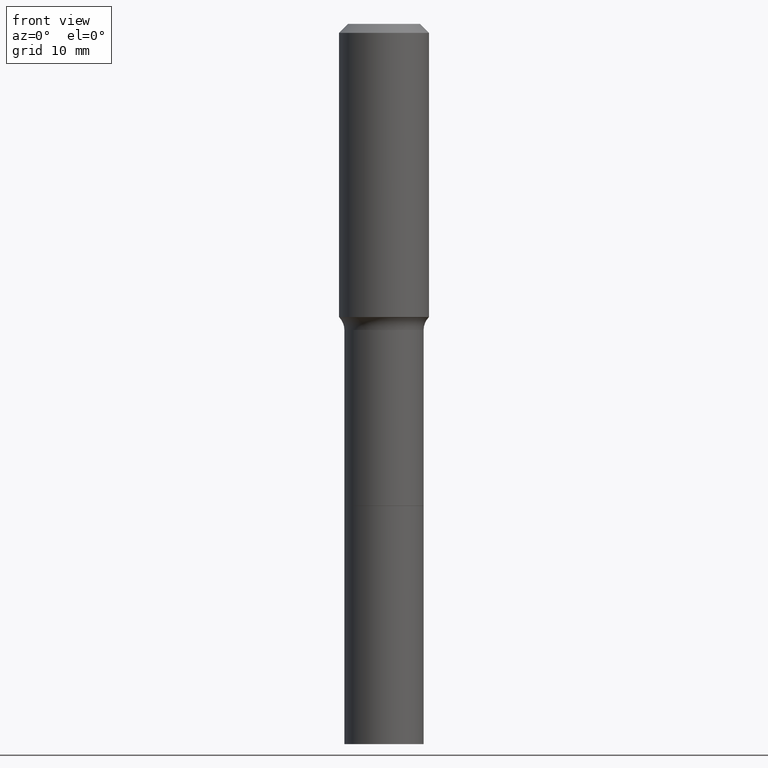
[diagram: clean part render]
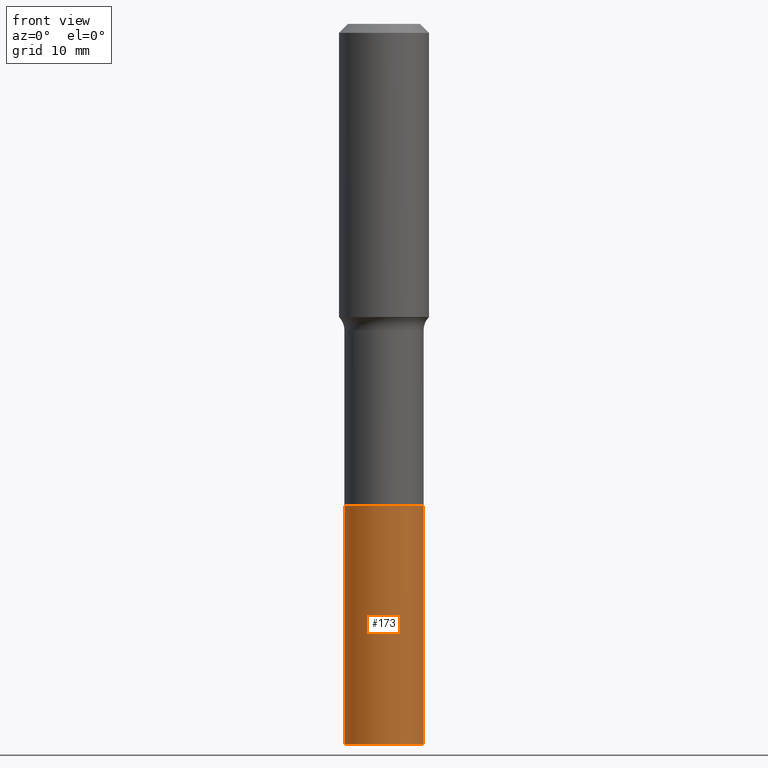
[diagram: same view with one face highlighted and labeled with its STEP entity id]
A machine part, front view. The second image highlights one B-rep face of the part: STEP entity #173.
In plain terms, the highlighted cylindrical surface (partial cylindrical patch) has radius 4.4006 mm, axis along (-0, 0, 1).
Its self-contained STEP definition (entity closure, byte-faithful):
#31 = DIRECTION ( 'NONE',  ( -2.445468806185136597E-29, 3.491481338843145583E-15, 1.000000000000000000 ) ) ;
#46 = EDGE_LOOP ( 'NONE', ( #390, #426, #222, #395 ) ) ;
#48 = CARTESIAN_POINT ( 'NONE',  ( -0.1732500000000001816, -7.944946816909296255E-15, -3.149600000000000399 ) ) ;
#51 = EDGE_CURVE ( 'NONE', #77, #307, #85, .T. ) ;
#55 = DIRECTION ( 'NONE',  ( -2.445468806185136597E-29, 3.491481338843145583E-15, 1.000000000000000000 ) ) ;
#62 = CARTESIAN_POINT ( 'NONE',  ( 0.1732500000000001816, -1.220656790872951925E-14, -3.149600000000000399 ) ) ;
#63 = AXIS2_PLACEMENT_3D ( 'NONE', #328, #414, #368 ) ;
#70 = VERTEX_POINT ( 'NONE', #237 ) ;
#77 = VERTEX_POINT ( 'NONE', #48 ) ;
#85 = LINE ( 'NONE', #238, #478 ) ;
#93 = EDGE_CURVE ( 'NONE', #77, #149, #281, .T. ) ;
#111 = CARTESIAN_POINT ( 'NONE',  ( -0.1732499999999999873, -7.944946816909297833E-15, -2.106600000000000250 ) ) ;
#144 = CIRCLE ( 'NONE', #501, 0.1732499999999999873 ) ;
#145 = DIRECTION ( 'NONE',  ( 1.000000000000000000, -6.982962677686265133E-15, 0.000000000000000000 ) ) ;
#149 = VERTEX_POINT ( 'NONE', #62 ) ;
#168 = CARTESIAN_POINT ( 'NONE',  ( 0.1732500000000000984, -8.564952872316117653E-15, -2.106600000000000250 ) ) ;
#173 = ADVANCED_FACE ( 'NONE', ( #246 ), #288, .T. ) ;
#213 = DIRECTION ( 'NONE',  ( -2.445468806185136877E-29, 3.491481338843145188E-15, 1.000000000000000000 ) ) ;
#216 = CARTESIAN_POINT ( 'NONE',  ( 5.151624587109609366E-29, -7.355154588406972292E-15, -2.106600000000000250 ) ) ;
#221 = CARTESIAN_POINT ( 'NONE',  ( 5.151624587109609366E-29, -7.355154588406972292E-15, -2.106600000000000250 ) ) ;
#222 = ORIENTED_EDGE ( 'NONE', *, *, #443, .T. ) ;
#234 = AXIS2_PLACEMENT_3D ( 'NONE', #216, #55, #381 ) ;
#237 = CARTESIAN_POINT ( 'NONE',  ( 0.1732499999999999873, -8.564952872316117653E-15, -2.106600000000000250 ) ) ;
#238 = CARTESIAN_POINT ( 'NONE',  ( -0.1732500000000000984, -6.124139298702597035E-15, -2.106600000000000250 ) ) ;
#246 = FACE_OUTER_BOUND ( 'NONE', #46, .T. ) ;
#271 = EDGE_CURVE ( 'NONE', #307, #70, #144, .T. ) ;
#281 = CIRCLE ( 'NONE', #63, 0.1732500000000001816 ) ;
#288 = CYLINDRICAL_SURFACE ( 'NONE', #234, 0.1732500000000000984 ) ;
#307 = VERTEX_POINT ( 'NONE', #111 ) ;
#328 = CARTESIAN_POINT ( 'NONE',  ( 7.702248551960706711E-29, -1.099676962482037231E-14, -3.149600000000000399 ) ) ;
#362 = VECTOR ( 'NONE', #213, 39.37007874015748143 ) ;
#368 = DIRECTION ( 'NONE',  ( 1.000000000000000000, -6.982962677686267499E-15, 0.000000000000000000 ) ) ;
#381 = DIRECTION ( 'NONE',  ( 1.000000000000000000, -6.982962677686265133E-15, 0.000000000000000000 ) ) ;
#390 = ORIENTED_EDGE ( 'NONE', *, *, #51, .F. ) ;
#395 = ORIENTED_EDGE ( 'NONE', *, *, #271, .F. ) ;
#414 = DIRECTION ( 'NONE',  ( -2.445468806185136597E-29, 3.491481338843145583E-15, 1.000000000000000000 ) ) ;
#426 = ORIENTED_EDGE ( 'NONE', *, *, #93, .T. ) ;
#442 = DIRECTION ( 'NONE',  ( -2.445468806185136877E-29, 3.491481338843145188E-15, 1.000000000000000000 ) ) ;
#443 = EDGE_CURVE ( 'NONE', #149, #70, #491, .T. ) ;
#478 = VECTOR ( 'NONE', #442, 39.37007874015748143 ) ;
#491 = LINE ( 'NONE', #168, #362 ) ;
#501 = AXIS2_PLACEMENT_3D ( 'NONE', #221, #31, #145 ) ;